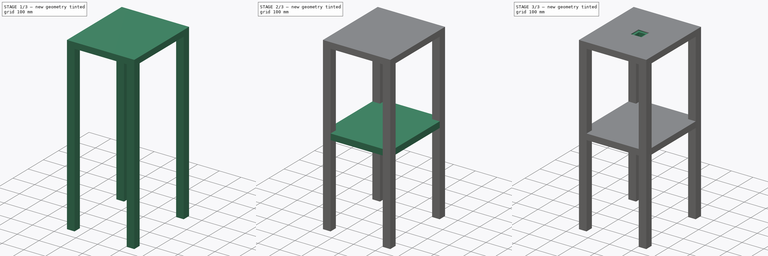
[diagram: build sequence overview — one tinted view per stage of 3, left to right]
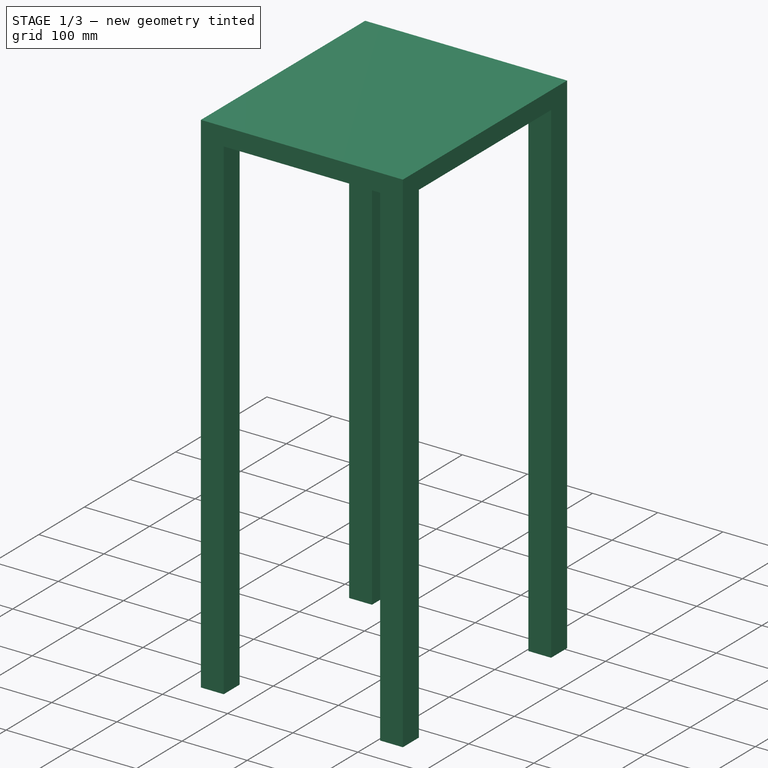
[diagram: stage 1 of 3 — iso view after this stage's code; geometry added in this stage tinted green]
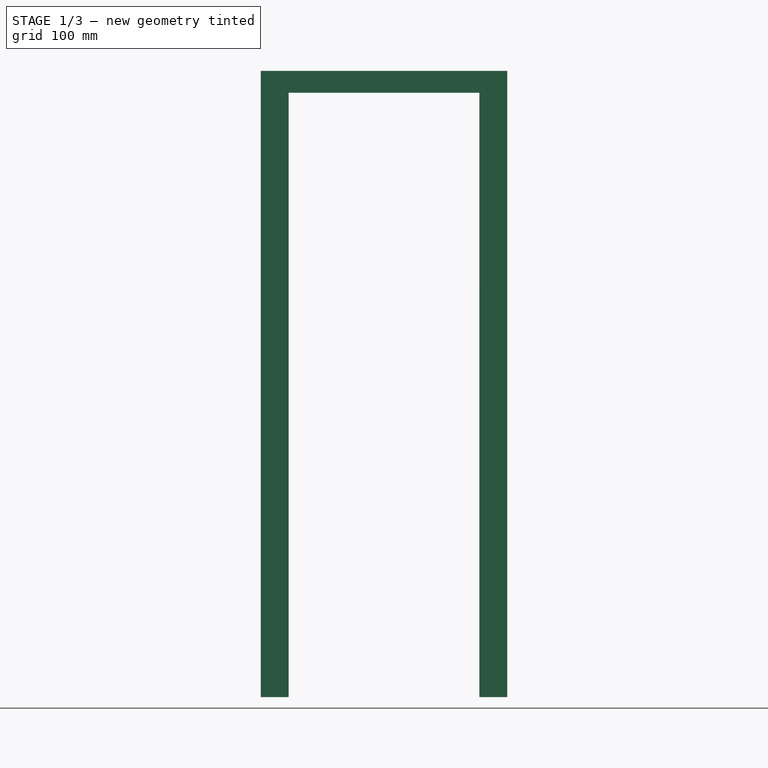
[diagram: stage 1 of 3 — front view after this stage's code; geometry added in this stage tinted green]
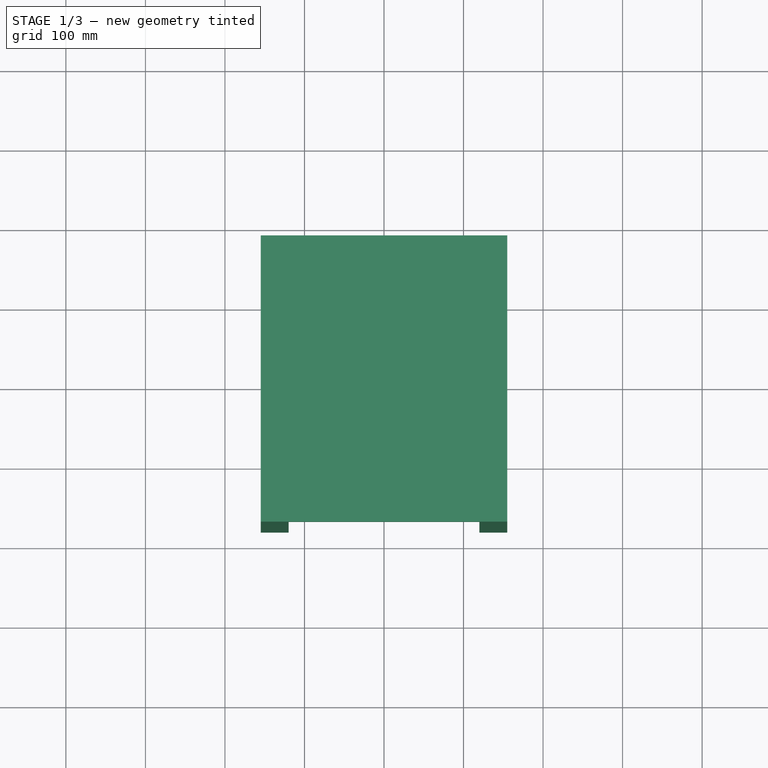
[diagram: stage 1 of 3 — top view after this stage's code; geometry added in this stage tinted green]
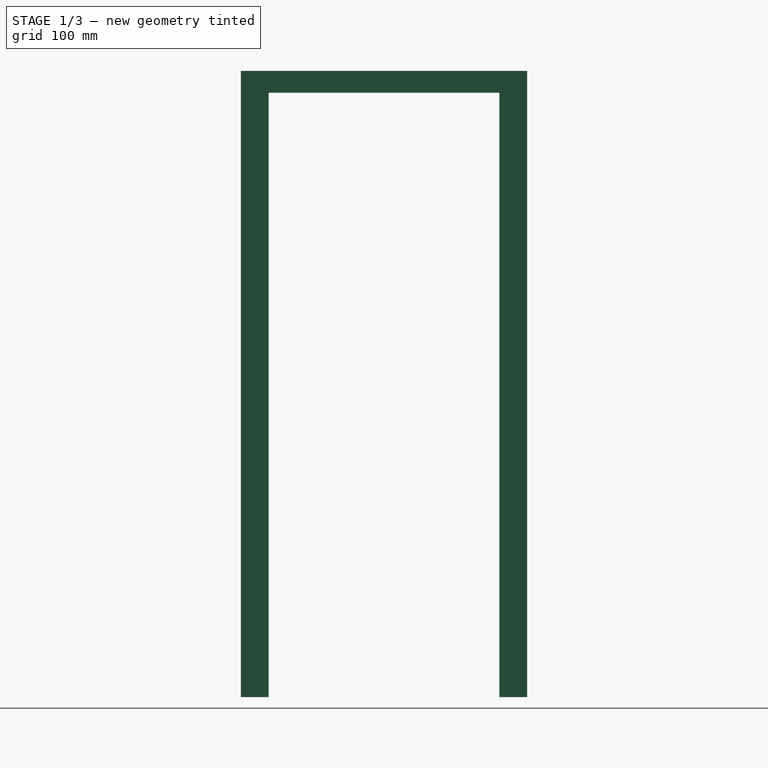
[diagram: stage 1 of 3 — right view after this stage's code; geometry added in this stage tinted green]
FCSTD DOCUMENT  (FreeCAD 1.0R39109 (Git))
Label: thesis_frame
License: All rights reserved
LicenseURL: https://en.wikipedia.org/wiki/All_rights_reserved
objects: Sketcher::SketchObject×4, PartDesign::Pad×2, PartDesign::Pocket×2, PartDesign::LinearPattern×1, PartDesign::Body×1
note: 23 computed .brp shape members not serialized (recipe doc carries the construction recipe); baked Part::Feature solids carry a one-line shape summary decoded from their .brp

FEATURE [Sketcher::SketchObject] Sketch
  ArcFitTolerance = 1e-06
  AttachmentSupport = -> [XY_Plane]
  FullyConstrained = true
  MakeInternals = false
  MapMode = 5
  sketch-geometry (5):
    g0: LineSegment StartX=-155 StartY=180 StartZ=0 EndX=-155 EndY=-180 EndZ=0
    g1: LineSegment StartX=-155 StartY=-180 StartZ=0 EndX=155 EndY=-180 EndZ=0
    g2: LineSegment StartX=155 StartY=-180 StartZ=0 EndX=155 EndY=180 EndZ=0
    g3: LineSegment StartX=155 StartY=180 StartZ=0 EndX=-155 EndY=180 EndZ=0
    g4: GeomPoint X=0 Y=0 Z=0
  constraints (12):
    c: Coincident(g0,g1)
    c: Coincident(g1,g2)
    c: Coincident(g2,g3)
    c: Coincident(g3,g0)
    c: Vertical(g0)
    c: Vertical(g2)
    c: Horizontal(g1)
    c: Horizontal(g3)
    c: DistanceX(g3,g3) = 310
    c: DistanceY(g0,g0) = 360
    c: Symmetric(g2,g0,g4)
    c: Coincident(g4,g-1)
FEATURE [PartDesign::Pad] Pad
  Direction = (0,0,1)
  Length = 27.5
  Length2 = 10
  Profile = -> Sketch
  ReferenceAxis = -> Sketch [N_Axis]
  Refine = true
  Suppressed = false
  Type = 0
FEATURE [Sketcher::SketchObject] Sketch001
  ArcFitTolerance = 1e-06
  AttachmentSupport = -> [Pad]
  ExternalGeometry = -> [Pad]
  FullyConstrained = true
  MakeInternals = false
  MapMode = 5
  Placement = pos=(0,0,0) rot=(1,0,0;3.14159rad)
  sketch-geometry (24):
    g0: LineSegment StartX=-155 StartY=180 StartZ=0 EndX=-155 EndY=145 EndZ=0
    g1: LineSegment StartX=-155 StartY=145 StartZ=0 EndX=-120 EndY=145 EndZ=0
    g2: LineSegment StartX=-120 StartY=145 StartZ=0 EndX=-120 EndY=180 EndZ=0
    g3: LineSegment StartX=-120 StartY=180 StartZ=0 EndX=-155 EndY=180 EndZ=0
    g4: LineSegment StartX=-155 StartY=-180 StartZ=0 EndX=-120 EndY=-180 EndZ=0
    g5: LineSegment StartX=-120 StartY=-180 StartZ=0 EndX=-120 EndY=-145 EndZ=0
    g6: LineSegment StartX=-120 StartY=-145 StartZ=0 EndX=-155 EndY=-145 EndZ=0
    g7: LineSegment StartX=-155 StartY=-145 StartZ=0 EndX=-155 EndY=-180 EndZ=0
    g8: LineSegment StartX=155 StartY=180 StartZ=0 EndX=120 EndY=180 EndZ=0
    g9: LineSegment StartX=120 StartY=180 StartZ=0 EndX=120 EndY=145 EndZ=0
    g10: LineSegment StartX=120 StartY=145 StartZ=0 EndX=155 EndY=145 EndZ=0
    g11: LineSegment StartX=155 StartY=145 StartZ=0 EndX=155 EndY=180 EndZ=0
    g12: LineSegment StartX=155 StartY=-180 StartZ=0 EndX=155 EndY=-145 EndZ=0
    g13: LineSegment StartX=155 StartY=-145 StartZ=0 EndX=120 EndY=-145 EndZ=0
    g14: LineSegment StartX=120 StartY=-145 StartZ=0 EndX=120 EndY=-180 EndZ=0
    g15: LineSegment StartX=120 StartY=-180 StartZ=0 EndX=155 EndY=-180 EndZ=0
    g16: GeomPoint X=-137.5 Y=162.5 Z=0
    g17: GeomPoint X=137.5 Y=162.5 Z=0
    g18: GeomPoint X=137.5 Y=-162.5 Z=0
    g19: GeomPoint X=-137.5 Y=-162.5 Z=0
    g20: LineSegment [constr] StartX=-155 StartY=145 StartZ=0 EndX=-155 EndY=-145 EndZ=0
    g21: LineSegment [constr] StartX=-120 StartY=-180 StartZ=0 EndX=120 EndY=-180 EndZ=0
    g22: LineSegment [constr] StartX=155 StartY=-145 StartZ=0 EndX=155 EndY=145 EndZ=0
    g23: LineSegment [constr] StartX=120 StartY=180 StartZ=0 EndX=-120 EndY=180 EndZ=0
  constraints (57):
    c: Coincident(g0,g1)
    c: Coincident(g1,g2)
    c: Coincident(g2,g3)
    c: Coincident(g3,g0)
    c: Vertical(g0)
    c: Vertical(g2)
    c: Horizontal(g1)
    c: Horizontal(g3)
    c: Coincident(g0,g-5)
    c: Coincident(g4,g5)
    c: Coincident(g5,g6)
    c: Coincident(g6,g7)
    c: Coincident(g7,g4)
    c: Horizontal(g4)
    c: Horizontal(g6)
    c: Vertical(g5)
    c: Vertical(g7)
    c: Coincident(g4,g-5)
    c: Coincident(g8,g9)
    c: Coincident(g9,g10)
    c: Coincident(g10,g11)
    c: Coincident(g11,g8)
    c: Horizontal(g8)
    c: Horizontal(g10)
    c: Vertical(g9)
    c: Vertical(g11)
    c: Coincident(g8,g-6)
    c: Coincident(g12,g13)
    c: Coincident(g13,g14)
    c: Coincident(g14,g15)
    c: Coincident(g15,g12)
    c: Vertical(g12)
    c: Vertical(g14)
    c: Horizontal(g13)
    c: Horizontal(g15)
    c: Coincident(g12,g-6)
    c: Symmetric(g0,g1,g16)
    c: Symmetric(g8,g10,g17)
    c: Symmetric(g4,g5,g19)
    c: Symmetric(g12,g14,g18)
    c: Coincident(g20,g0)
    c: Coincident(g20,g6)
    c: PointOnObject(g21,g-4)
    c: Coincident(g21,g14)
    c: Coincident(g22,g12)
    c: Coincident(g22,g10)
    c: Coincident(g23,g8)
    c: Coincident(g23,g2)
    c: DistanceY(g20,g20) = 290
    c: Equal(g20,g22)
    c: Equal(g12,g11)
    c: Equal(g0,g7)
    c: Equal(g23,g21)
    c: Equal(g3,g8)
    c: Equal(g8,g4)
    c: Equal(g4,g15)
    c: DistanceX(g23,g23) = 240
FEATURE [PartDesign::Pad] Pad001
  BaseFeature = -> Pad
  Direction = (0,0,-1)
  Length = 760
  Length2 = 10
  Profile = -> Sketch001
  ReferenceAxis = -> Sketch001 [N_Axis]
  Refine = true
  Suppressed = false
  Type = 0
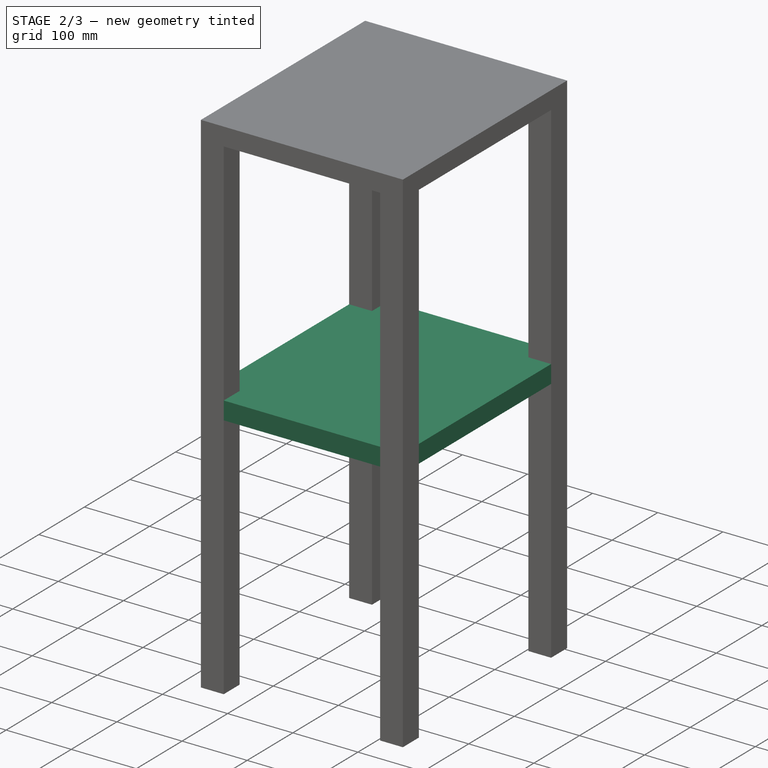
[diagram: stage 2 of 3 — iso view after this stage's code; geometry added in this stage tinted green]
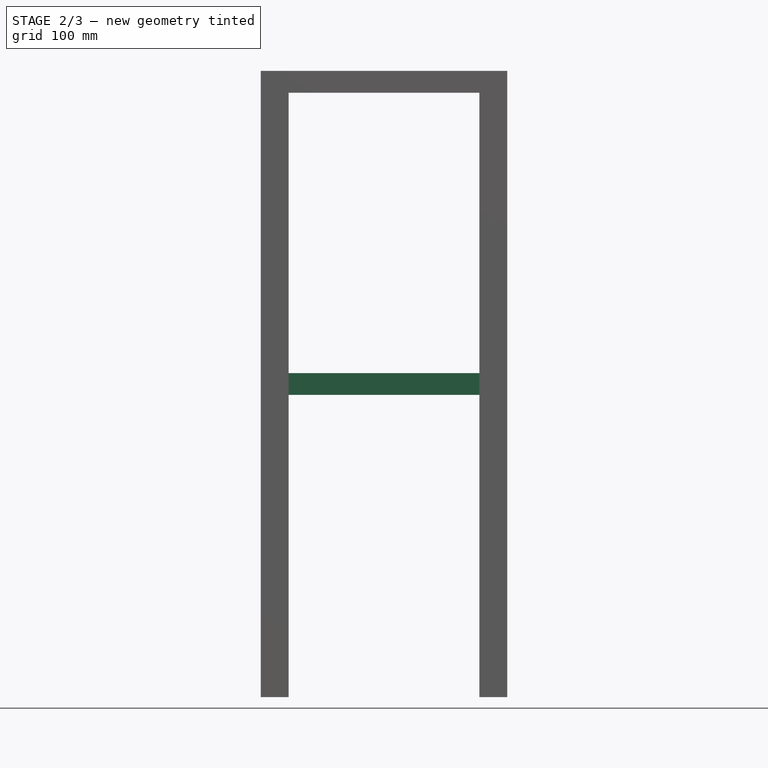
[diagram: stage 2 of 3 — front view after this stage's code; geometry added in this stage tinted green]
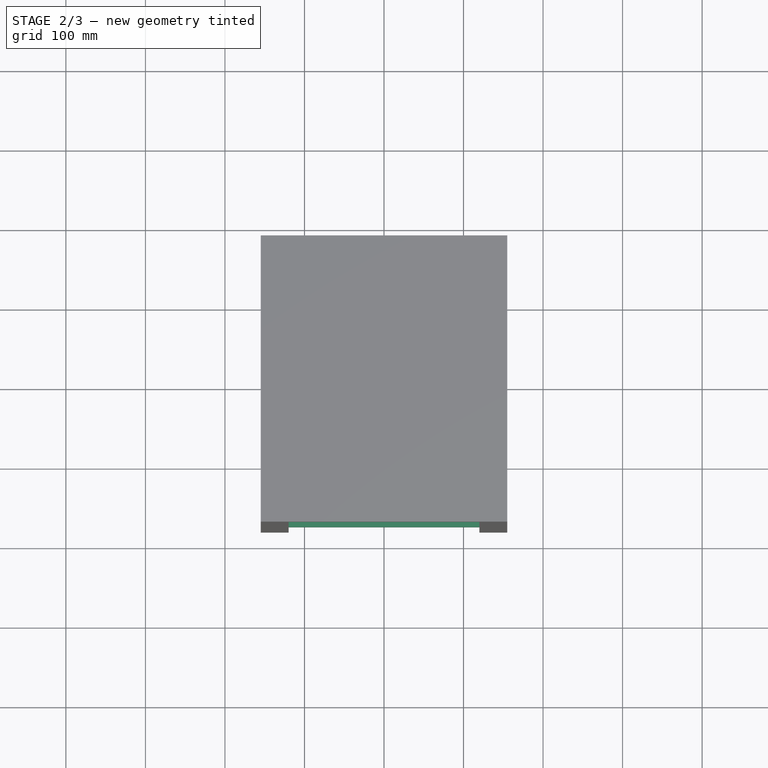
[diagram: stage 2 of 3 — top view after this stage's code; geometry added in this stage tinted green]
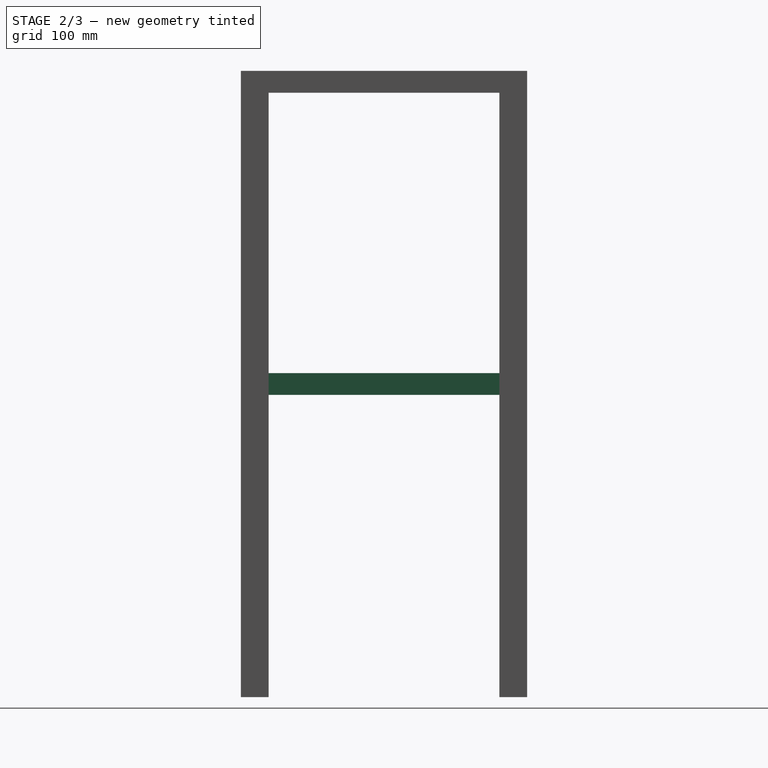
[diagram: stage 2 of 3 — right view after this stage's code; geometry added in this stage tinted green]
FEATURE [PartDesign::LinearPattern] LinearPattern
  BaseFeature = -> Pad001
  Direction = -> Z_Axis
  Length = 380
  Mode = 1
  Occurrences = 2
  Offset = 380
  Originals = -> [Pad]
  Refine = true
  Reversed = true
  Suppressed = false
  TransformMode = 0
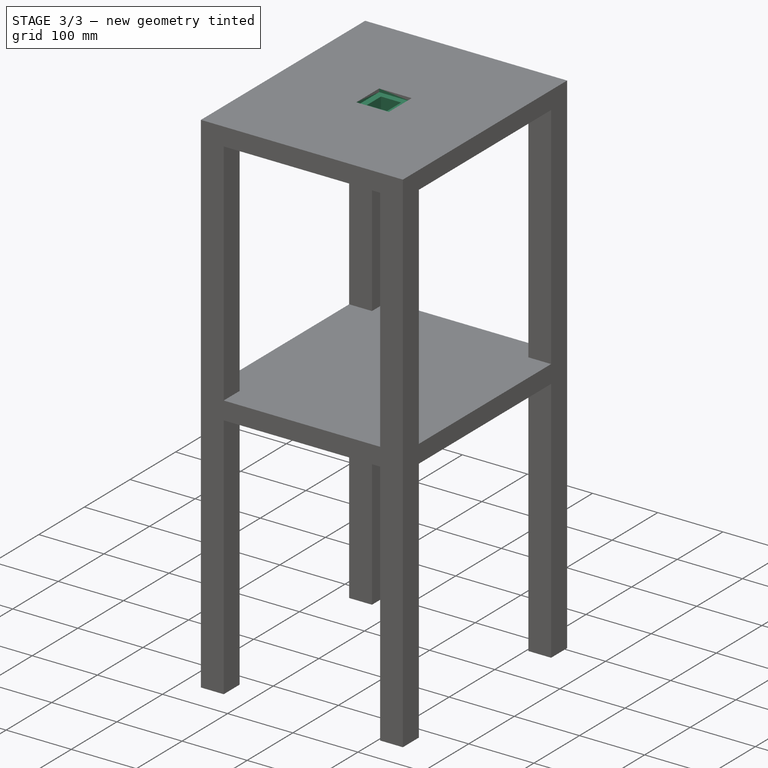
[diagram: stage 3 of 3 — iso view after this stage's code; geometry added in this stage tinted green]
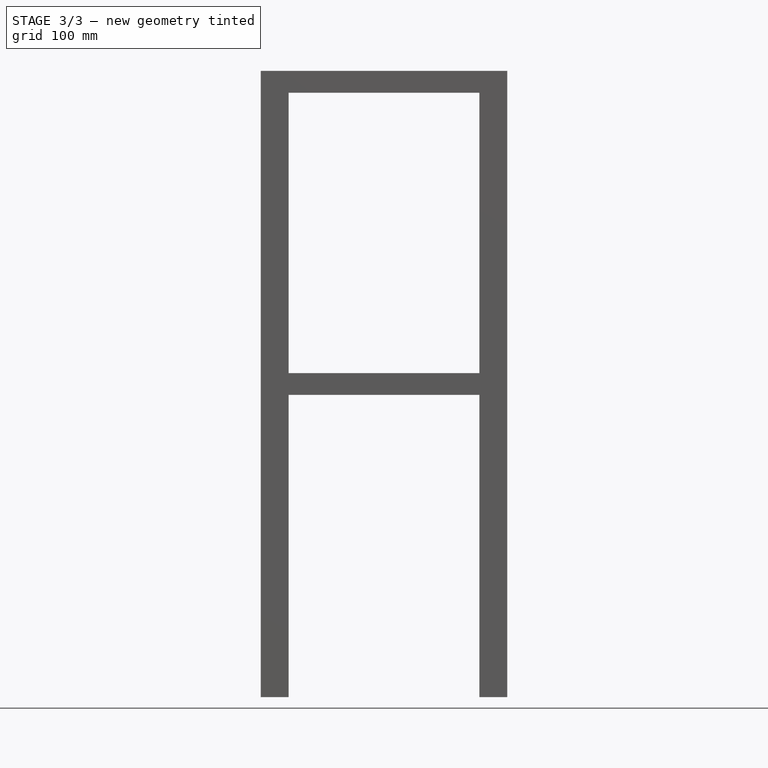
[diagram: stage 3 of 3 — front view after this stage's code; geometry added in this stage tinted green]
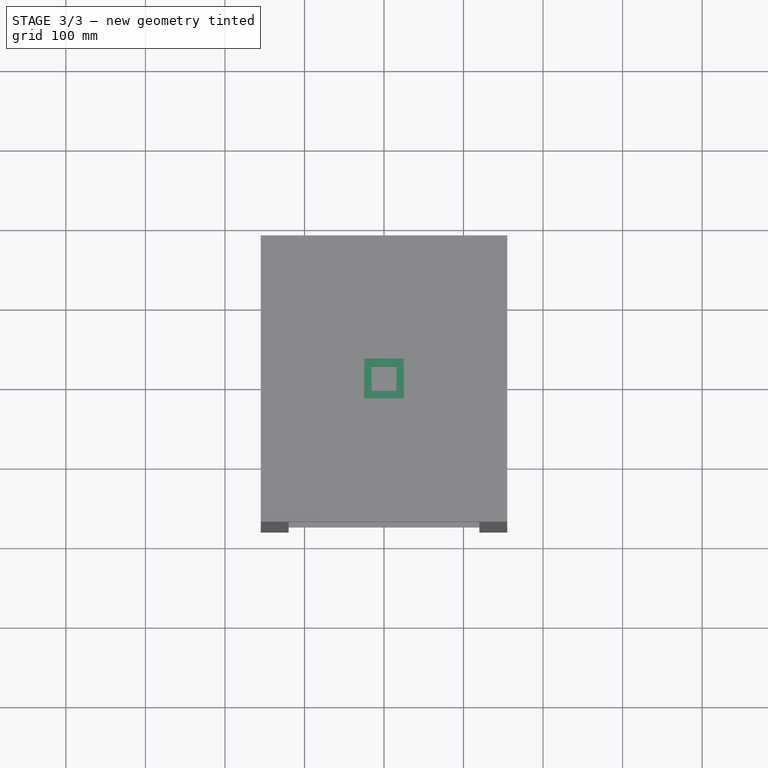
[diagram: stage 3 of 3 — top view after this stage's code; geometry added in this stage tinted green]
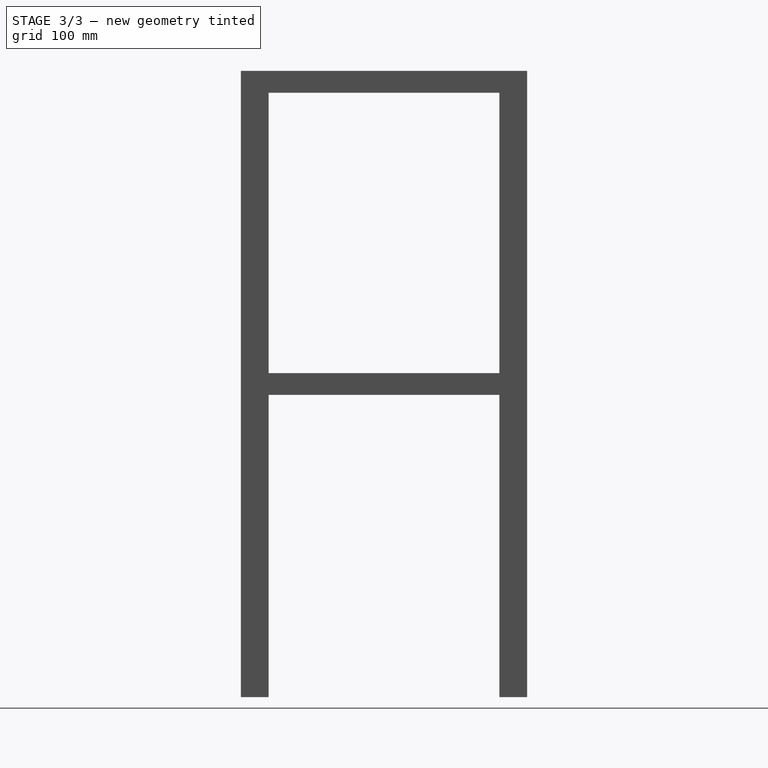
[diagram: stage 3 of 3 — right view after this stage's code; geometry added in this stage tinted green]
FEATURE [Sketcher::SketchObject] Sketch002
  ArcFitTolerance = 1e-06
  AttachmentSupport = -> [LinearPattern]
  FullyConstrained = true
  MakeInternals = false
  MapMode = 5
  Placement = pos=(0,0,27.5) rot=(0,0,1;0rad)
  sketch-geometry (5):
    g0: LineSegment StartX=15.5 StartY=-15.5 StartZ=0 EndX=15.5 EndY=15.5 EndZ=0
    g1: LineSegment StartX=15.5 StartY=15.5 StartZ=0 EndX=-15.5 EndY=15.5 EndZ=0
    g2: LineSegment StartX=-15.5 StartY=15.5 StartZ=0 EndX=-15.5 EndY=-15.5 EndZ=0
    g3: LineSegment StartX=-15.5 StartY=-15.5 StartZ=0 EndX=15.5 EndY=-15.5 EndZ=0
    g4: GeomPoint [constr] X=0 Y=0 Z=0
  constraints (12):
    c: Coincident(g0,g1)
    c: Coincident(g1,g2)
    c: Coincident(g2,g3)
    c: Coincident(g3,g0)
    c: Vertical(g0)
    c: Vertical(g2)
    c: Horizontal(g1)
    c: Horizontal(g3)
    c: Symmetric(g2,g0,g4)
    c: Coincident(g4,g-1)
    c: DistanceX(g1,g1) = 31
    c: DistanceY(g0,g0) = 31
FEATURE [PartDesign::Pocket] Pocket
  BaseFeature = -> LinearPattern
  Direction = (0,0,-1)
  Length = 28
  Length2 = 5
  Profile = -> Sketch002
  ReferenceAxis = -> Sketch002 [N_Axis]
  Refine = true
  Suppressed = false
  Type = 0
FEATURE [Sketcher::SketchObject] Sketch003
  ArcFitTolerance = 1e-06
  AttachmentSupport = -> [Pocket]
  FullyConstrained = true
  MakeInternals = false
  MapMode = 5
  Placement = pos=(0,0,27.5) rot=(0,0,1;0rad)
  sketch-geometry (5):
    g0: LineSegment StartX=-25 StartY=25 StartZ=0 EndX=-25 EndY=-25 EndZ=0
    g1: LineSegment StartX=-25 StartY=-25 StartZ=0 EndX=25 EndY=-25 EndZ=0
    g2: LineSegment StartX=25 StartY=-25 StartZ=0 EndX=25 EndY=25 EndZ=0
    g3: LineSegment StartX=25 StartY=25 StartZ=0 EndX=-25 EndY=25 EndZ=0
    g4: GeomPoint [constr] X=0 Y=0 Z=0
  constraints (12):
    c: Coincident(g0,g1)
    c: Coincident(g1,g2)
    c: Coincident(g2,g3)
    c: Coincident(g3,g0)
    c: Vertical(g0)
    c: Vertical(g2)
    c: Horizontal(g1)
    c: Horizontal(g3)
    c: Symmetric(g2,g0,g4)
    c: Coincident(g4,g-1)
    c: DistanceX(g3,g3) = 50
    c: Equal(g3,g2)
FEATURE [PartDesign::Pocket] Pocket001
  BaseFeature = -> Pocket
  Direction = (0,0,-1)
  Length = 5
  Length2 = 5
  Profile = -> Sketch003
  ReferenceAxis = -> Sketch003 [N_Axis]
  Refine = true
  Suppressed = false
  Type = 0
FEATURE [PartDesign::Body] Body  label="Frame"
  AllowCompound = false
  Group = -> [Sketch,Pad,Sketch001,Pad001,LinearPattern,Sketch002,Pocket,Sketch003,Pocket001]
  Origin = -> Origin
  Tip = -> Pocket001
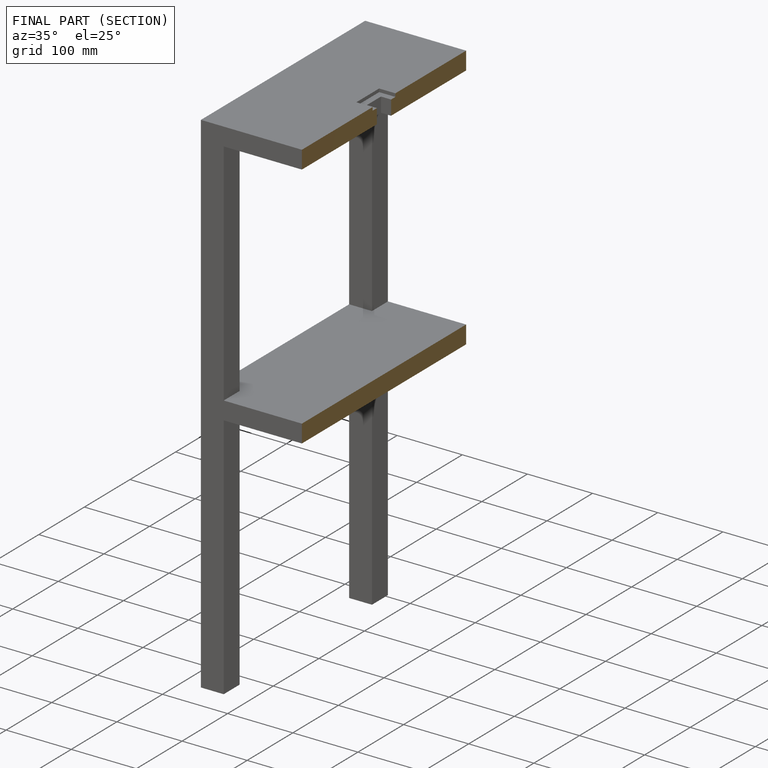
[diagram: finished part — half-section view (interior)]
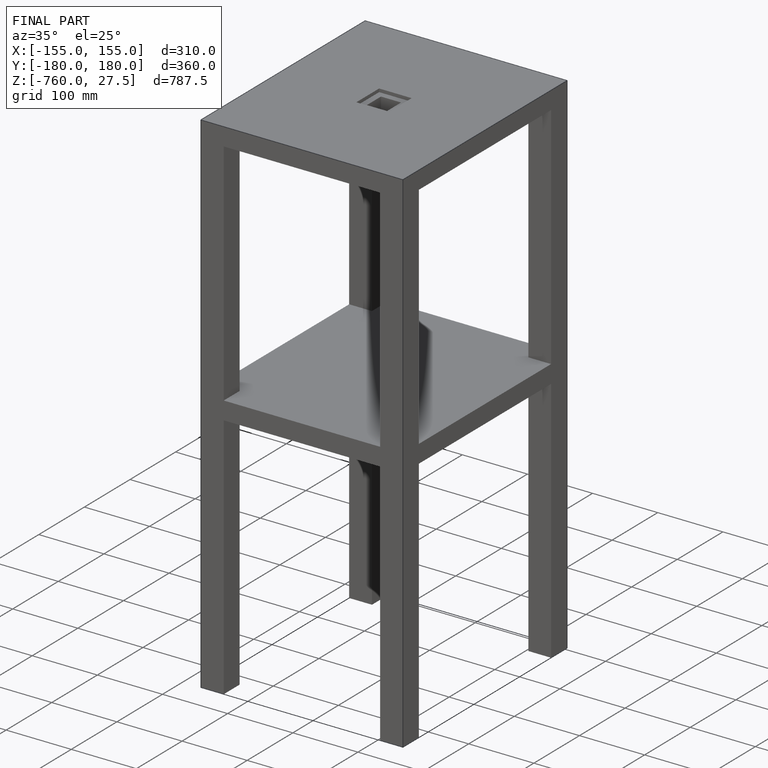
[diagram: finished part — iso view with bounding-box wireframe]
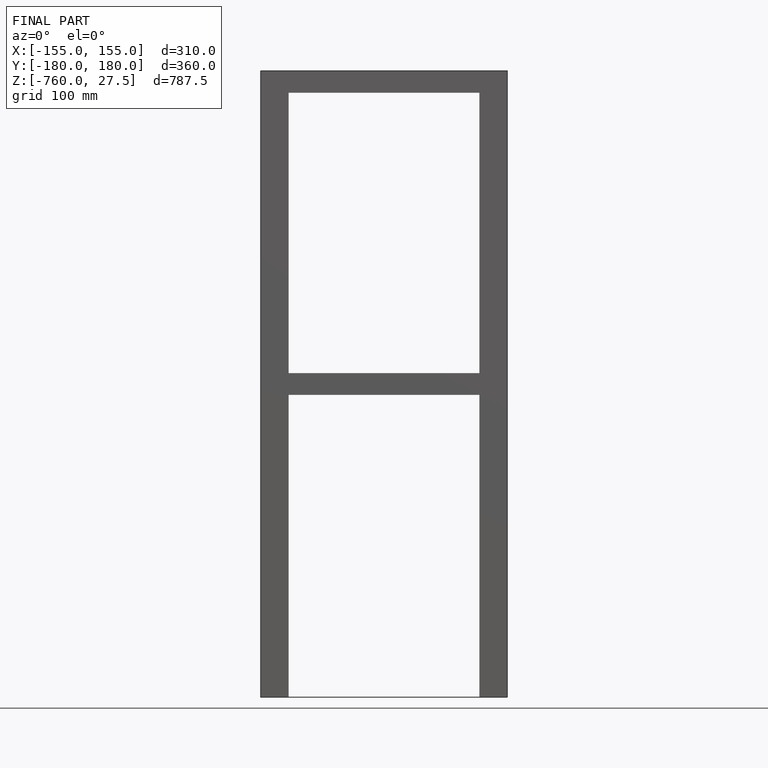
[diagram: finished part — front view with bounding-box wireframe]
